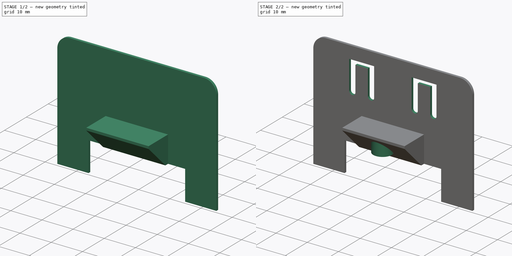
[diagram: build sequence overview — one tinted view per stage of 2, left to right]
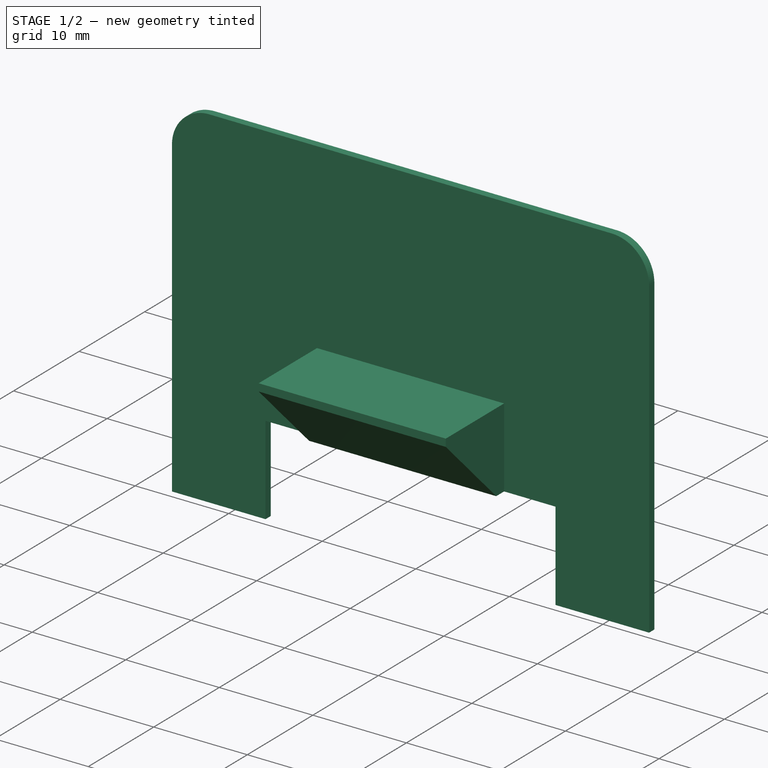
[diagram: stage 1 of 2 — iso view after this stage's code; geometry added in this stage tinted green]
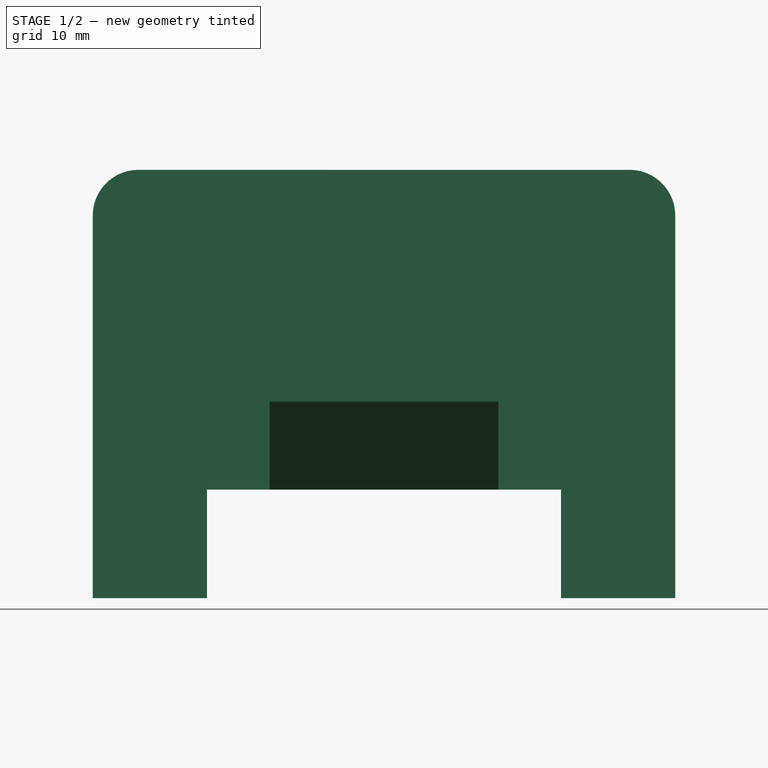
[diagram: stage 1 of 2 — front view after this stage's code; geometry added in this stage tinted green]
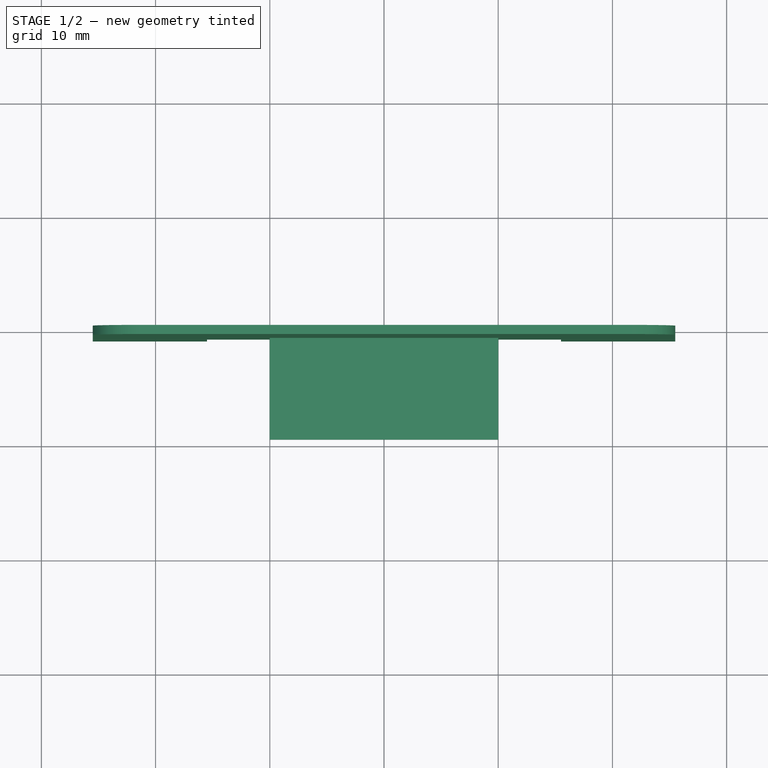
[diagram: stage 1 of 2 — top view after this stage's code; geometry added in this stage tinted green]
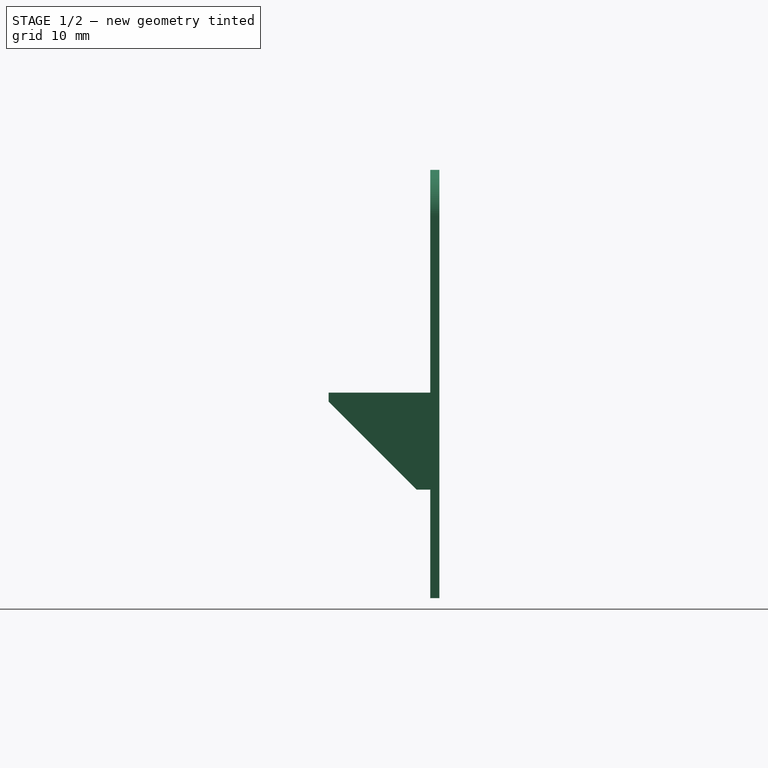
[diagram: stage 1 of 2 — right view after this stage's code; geometry added in this stage tinted green]
FCSTD DOCUMENT  (FreeCAD 0.19R24367 (Git))
Label: escornafaceBCClip
License: Creative Commons Attribution-ShareAlike
LicenseURL: http://creativecommons.org/licenses/by-sa/4.0/
objects: Sketcher::SketchObject×4, PartDesign::Pad×3, PartDesign::Pocket×1, PartDesign::Body×1, App::Part×1
note: 13 computed .brp shape members not serialized (recipe doc carries the construction recipe); baked Part::Feature solids carry a one-line shape summary decoded from their .brp

FEATURE [Sketcher::SketchObject] Sketch  label="Sketch-base"
  FullyConstrained = true
  MapMode = 5
  Placement = pos=(0,0,0) rot=(1,0,0;1.5708rad)
  Support = -> [XZ_Plane002]
  sketch-geometry (10):
    g0: LineSegment StartX=-25.5 StartY=14.5 StartZ=0 EndX=-25.5 EndY=48 EndZ=0
    g1: ArcOfCircle CenterX=-21.5 CenterY=48 CenterZ=0 NormalX=0 NormalY=0 NormalZ=1 AngleXU=0 Radius=4 StartAngle=1.5708 EndAngle=3.14159
    g2: LineSegment StartX=-21.5 StartY=52 StartZ=0 EndX=21.5 EndY=52 EndZ=0
    g3: ArcOfCircle CenterX=21.5 CenterY=48 CenterZ=0 NormalX=0 NormalY=0 NormalZ=1 AngleXU=0 Radius=4 StartAngle=1e-16 EndAngle=1.5708
    g4: LineSegment StartX=25.5 StartY=48 StartZ=0 EndX=25.5 EndY=14.5 EndZ=0
    g5: LineSegment StartX=25.5 StartY=14.5 StartZ=0 EndX=15.5 EndY=14.5 EndZ=0
    g6: LineSegment StartX=15.5 StartY=14.5 StartZ=0 EndX=15.5 EndY=24 EndZ=0
    g7: LineSegment StartX=15.5 StartY=24 StartZ=0 EndX=-15.5 EndY=24 EndZ=0
    g8: LineSegment StartX=-15.5 StartY=24 StartZ=0 EndX=-15.5 EndY=14.5 EndZ=0
    g9: LineSegment StartX=-15.5 StartY=14.5 StartZ=0 EndX=-25.5 EndY=14.5 EndZ=0
  constraints (27):
    c: Vertical(g0)
    c: Tangent(g0,g1) = 1.5708
    c: Tangent(g1,g2) = 1.5708
    c: Tangent(g2,g3) = 1.5708
    c: Tangent(g3,g4) = 1.5708
    c: Coincident(g4,g5)
    c: Horizontal(g5)
    c: Coincident(g5,g6)
    c: Vertical(g6)
    c: Coincident(g6,g7)
    c: Horizontal(g7)
    c: Coincident(g7,g8)
    c: Vertical(g8)
    c: Coincident(g8,g9)
    c: Coincident(g9,g0)
    c: Horizontal(g9)
    c: Equal(g9,g5)
    c: Vertical(g4)
    c: Horizontal(g2)
    c: Symmetric(g8,g5,g-2)
    c: Equal(g1,g3)
    c: DistanceX(g0,g3) = 51
    c: DistanceY(g4,g2) = 37.5
    c: DistanceX(g5,g5) = 10
    c: DistanceY(g6,g6) = 9.5
    c: DistanceY(g5) = 14.5
    c: Radius(g1) = 4
FEATURE [PartDesign::Pad] Pad  label="Pad-base"
  Direction = (1,1,1)
  Length = 0.8
  Length2 = 100
  Placement = pos=(0,0,0) rot=(1,0,0;1.5708rad)
  Profile = -> Sketch
  Type = 0
FEATURE [Sketcher::SketchObject] Sketch001  label="Sketch-support"
  FullyConstrained = true
  MapMode = 5
  Placement = pos=(0,0,0) rot=(0.57735,0.57735,0.57735;2.0944rad)
  Support = -> [YZ_Plane002]
  sketch-geometry (5):
    g0: LineSegment StartX=-2 StartY=24 StartZ=0 EndX=-9.7 EndY=31.7 EndZ=0
    g1: LineSegment StartX=-9.7 StartY=32.5 StartZ=0 EndX=0 EndY=32.5 EndZ=0
    g2: LineSegment StartX=0 StartY=32.5 StartZ=0 EndX=0 EndY=24 EndZ=0
    g3: LineSegment StartX=-2 StartY=24 StartZ=0 EndX=0 EndY=24 EndZ=0
    g4: LineSegment StartX=-9.7 StartY=31.7 StartZ=0 EndX=-9.7 EndY=32.5 EndZ=0
  constraints (15):
    c: Horizontal(g1)
    c: Coincident(g1,g2)
    c: Vertical(g2)
    c: Angle(g2,g0) = 0.785398
    c: Horizontal(g3)
    c: Coincident(g0,g3)
    c: Coincident(g2,g3)
    c: DistanceY(g2,g2) = 8.5
    c: PointOnObject(g2,g-2)
    c: Vertical(g4)
    c: Coincident(g1,g4)
    c: Coincident(g0,g4)
    c: DistanceX(g3,g3) = 2
    c: DistanceY(g4,g4) = 0.8
    c: DistanceY(g2) = 24
FEATURE [PartDesign::Pad] Pad001  label="Pad-support"
  BaseFeature = -> Pad
  Direction = (1,1,1)
  Length = 20
  Length2 = 100
  Midplane = true
  Placement = pos=(0,0,0) rot=(1,0,0;1.5708rad)
  Profile = -> Sketch001
  Refine = true
  Type = 0
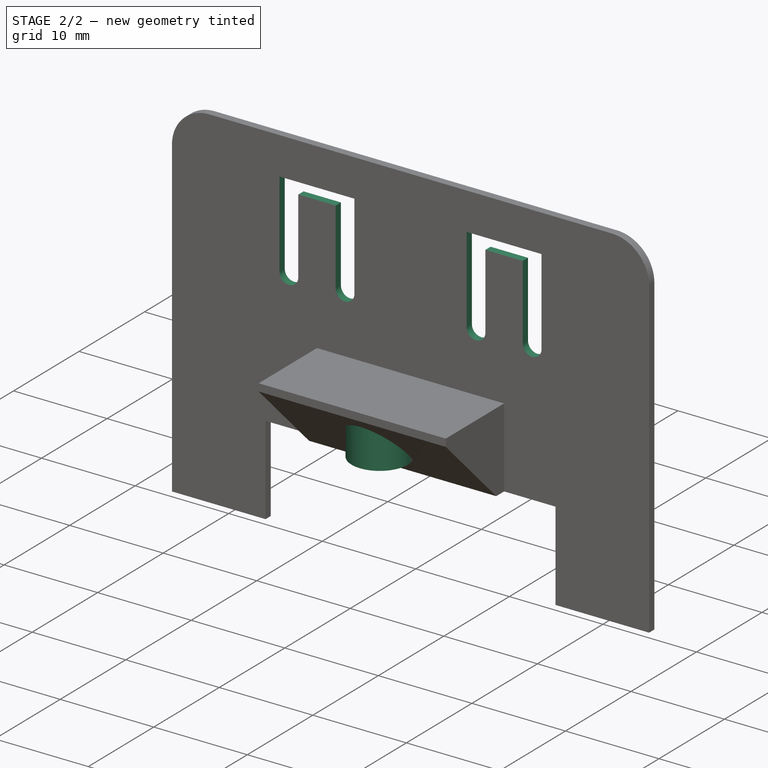
[diagram: stage 2 of 2 — iso view after this stage's code; geometry added in this stage tinted green]
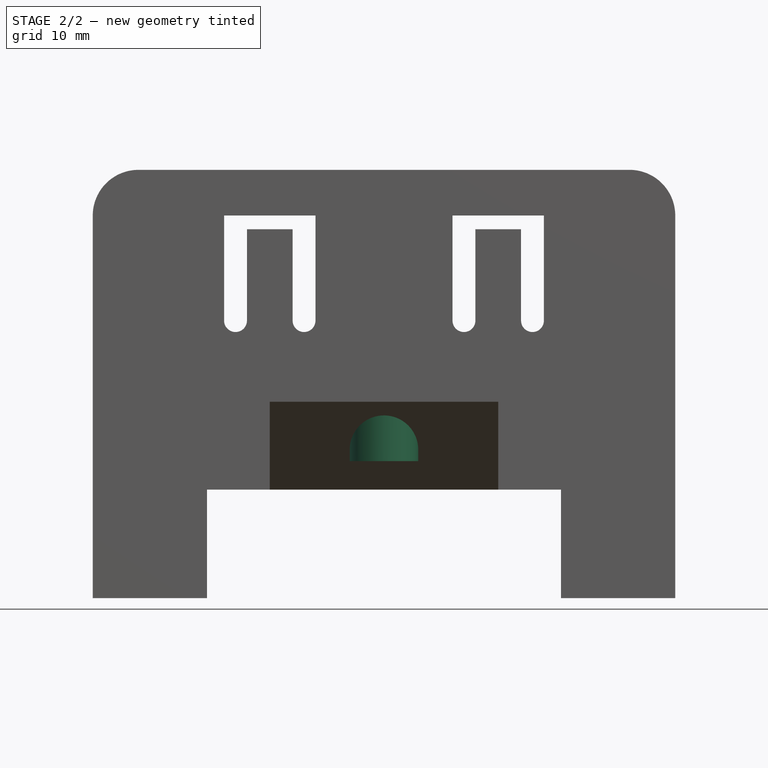
[diagram: stage 2 of 2 — front view after this stage's code; geometry added in this stage tinted green]
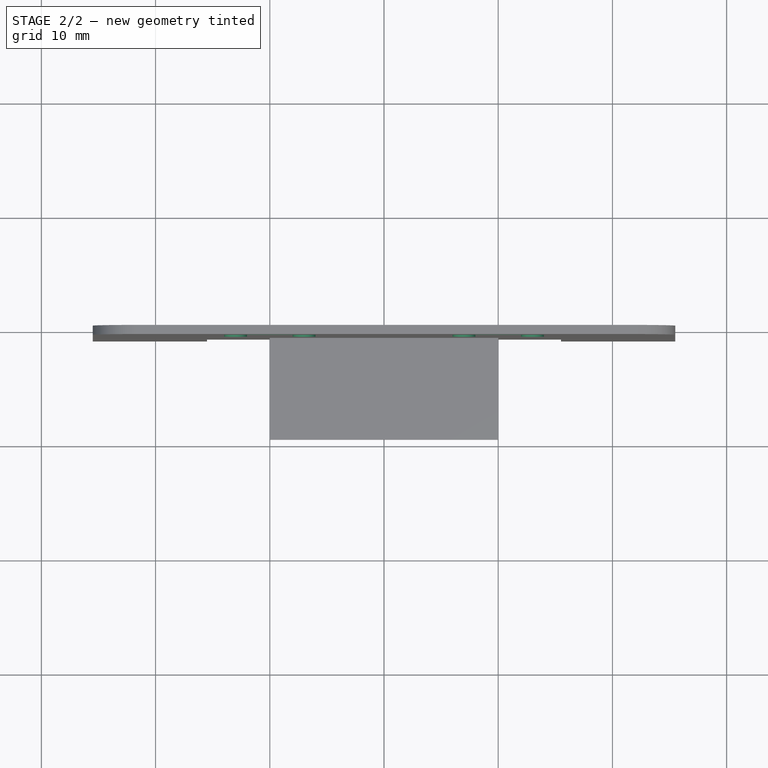
[diagram: stage 2 of 2 — top view after this stage's code; geometry added in this stage tinted green]
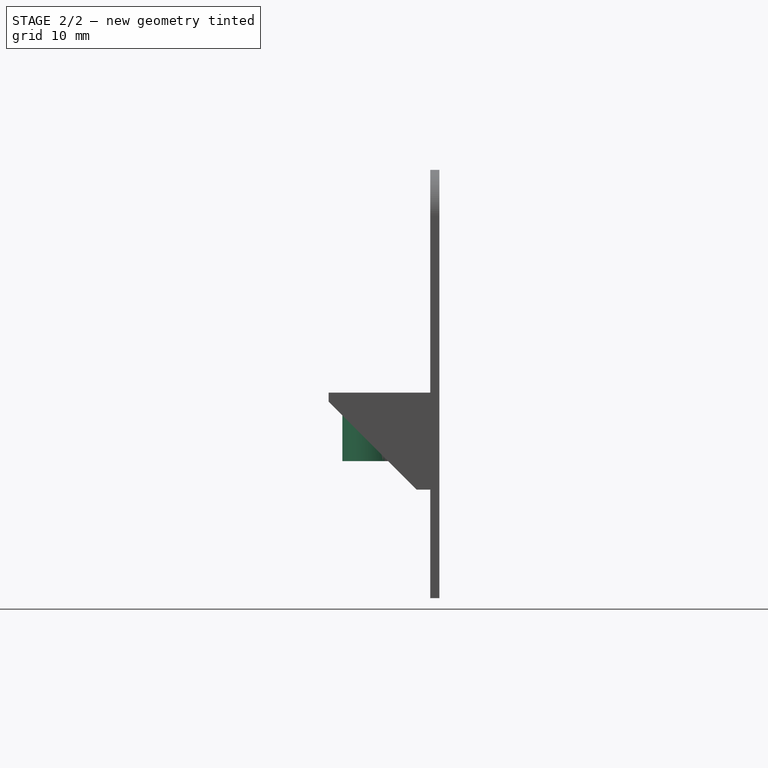
[diagram: stage 2 of 2 — right view after this stage's code; geometry added in this stage tinted green]
FEATURE [Sketcher::SketchObject] Sketch003  label="Sketch-hook"
  FullyConstrained = true
  MapMode = 5
  Placement = pos=(-9.1e-15,1.43e-14,32.5) rot=(0,0,1;3.14159rad)
  Support = -> [Pad001]
  sketch-geometry (1):
    g0: Circle CenterX=0 CenterY=5.5 CenterZ=0 NormalX=0 NormalY=0 NormalZ=1 AngleXU=0 Radius=3
  constraints (3):
    c: Radius(g0) = 3
    c: DistanceY(g0) = 5.5
    c: PointOnObject(g0,g-2)
FEATURE [PartDesign::Pad] Pad002  label="Pad-hook"
  BaseFeature = -> Pad001
  Direction = (1,1,1)
  Length = 6
  Length2 = 100
  Placement = pos=(0,0,0) rot=(1,0,0;1.5708rad)
  Profile = -> Sketch003
  Refine = true
  Reversed = true
  Type = 0
FEATURE [Sketcher::SketchObject] Sketch004  label="Sketch-clips"
  FullyConstrained = true
  MapMode = 5
  Placement = pos=(0,-0.8,-2e-16) rot=(1,0,0;1.5708rad)
  Support = -> [Pad002]
  sketch-geometry (16):
    g0: LineSegment StartX=-12 StartY=38.8 StartZ=0 EndX=-12 EndY=46.8 EndZ=0
    g1: LineSegment StartX=-12 StartY=46.8 StartZ=0 EndX=-8 EndY=46.8 EndZ=0
    g2: LineSegment StartX=-8 StartY=46.8 StartZ=0 EndX=-8 EndY=38.8 EndZ=0
    g3: ArcOfCircle CenterX=-7 CenterY=38.8 CenterZ=0 NormalX=0 NormalY=0 NormalZ=1 AngleXU=0 Radius=1 StartAngle=3.14159 EndAngle=6.28319
    g4: LineSegment StartX=-6 StartY=38.8 StartZ=0 EndX=-6 EndY=48 EndZ=0
    g5: LineSegment StartX=-6 StartY=48 StartZ=0 EndX=-14 EndY=48 EndZ=0
    g6: LineSegment StartX=-14 StartY=48 StartZ=0 EndX=-14 EndY=38.8 EndZ=0
    g7: ArcOfCircle CenterX=-13 CenterY=38.8 CenterZ=0 NormalX=0 NormalY=0 NormalZ=1 AngleXU=0 Radius=1 StartAngle=3.14159 EndAngle=6.28319
    g8: LineSegment StartX=12 StartY=38.8 StartZ=0 EndX=12 EndY=46.8 EndZ=0
    g9: LineSegment StartX=12 StartY=46.8 StartZ=0 EndX=8 EndY=46.8 EndZ=0
    g10: LineSegment StartX=8 StartY=46.8 StartZ=0 EndX=8 EndY=38.8 EndZ=0
    g11: ArcOfCircle CenterX=7 CenterY=38.8 CenterZ=0 NormalX=0 NormalY=0 NormalZ=1 AngleXU=0 Radius=1 StartAngle=3.14159 EndAngle=6.28319
    g12: LineSegment StartX=6 StartY=38.8 StartZ=0 EndX=6 EndY=48 EndZ=0
    g13: LineSegment StartX=6 StartY=48 StartZ=0 EndX=14 EndY=48 EndZ=0
    g14: LineSegment StartX=14 StartY=48 StartZ=0 EndX=14 EndY=38.8 EndZ=0
    g15: ArcOfCircle CenterX=13 CenterY=38.8 CenterZ=0 NormalX=0 NormalY=0 NormalZ=1 AngleXU=0 Radius=1 StartAngle=3.14159 EndAngle=6.28319
  constraints (44):
    c: Vertical(g0)
    c: Coincident(g0,g1)
    c: Horizontal(g1)
    c: Coincident(g1,g2)
    c: Vertical(g2)
    c: Tangent(g2,g3) = -1.5708
    c: Tangent(g3,g4) = -1.5708
    c: Coincident(g4,g5)
    c: Horizontal(g5)
    c: Coincident(g5,g6)
    c: Vertical(g6)
    c: Tangent(g6,g7) = -1.5708
    c: Vertical(g4)
    c: Tangent(g7,g0) = -1.5708
    c: Equal(g7,g3)
    c: DistanceX(g1,g1) = 4
    c: DistanceY(g0,g0) = 8
    c: Radius(g7) = 1
    c: DistanceY(g1,g4) = 1.2
    c: Horizontal(g3,g7)
    c: DistanceX(g4) = -6
    c: DistanceY(g5) = 48
    c: Vertical(g8)
    c: Coincident(g8,g9)
    c: Horizontal(g9)
    c: Coincident(g9,g10)
    c: Vertical(g10)
    c: Tangent(g10,g11) = 1.5708
    c: Tangent(g11,g12) = 1.5708
    c: Coincident(g12,g13)
    c: Horizontal(g13)
    c: Coincident(g13,g14)
    c: Vertical(g14)
    c: Tangent(g14,g15) = 1.5708
    c: Vertical(g12)
    c: Tangent(g15,g8) = 1.5708
    c: Equal(g15,g11)
    c: Radius(g15) = 1
    c: Equal(g10,g0)
    c: Equal(g1,g9)
    c: DistanceX(g12) = 6
    c: DistanceY(g9,g12) = 1.2
    c: Horizontal(g11,g15)
    c: Horizontal(g4,g12)
FEATURE [PartDesign::Pocket] Pocket  label="Pocket-clips"
  BaseFeature = -> Pad002
  Length = 5
  Length2 = 100
  Placement = pos=(0,0,0) rot=(1,0,0;1.5708rad)
  Profile = -> Sketch004
  Type = 0
FEATURE [PartDesign::Body] Body  label="Body-escornaface"
  Group = -> [Sketch,Pad,Sketch001,Pad001,Sketch003,Pad002,Sketch004,Pocket]
  Origin = -> Origin002
  Tip = -> Pocket
FEATURE [App::Part] Part  label="Part-escornaface"
  Group = -> [Body]
  Origin = -> Origin001
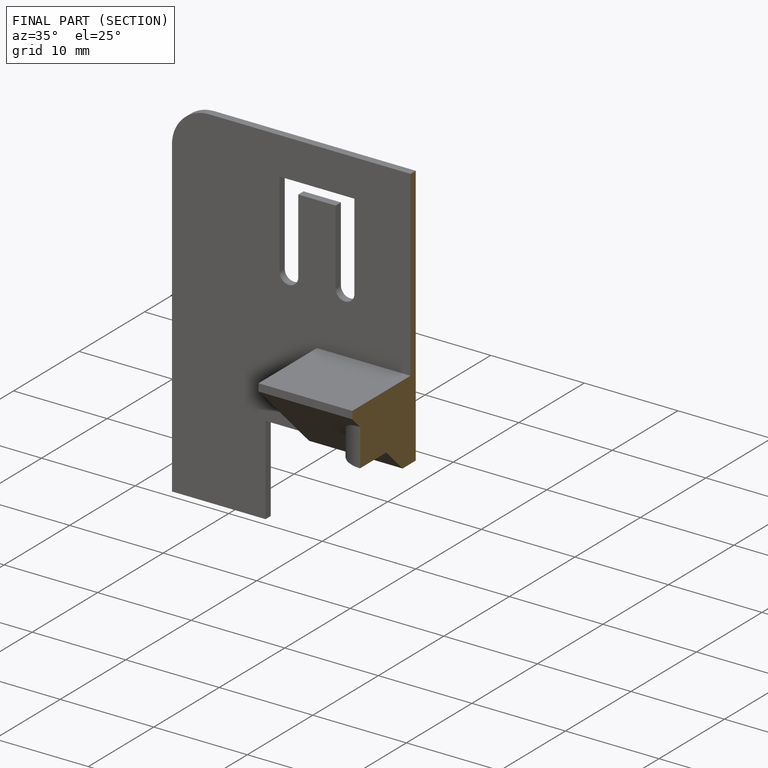
[diagram: finished part — half-section view (interior)]
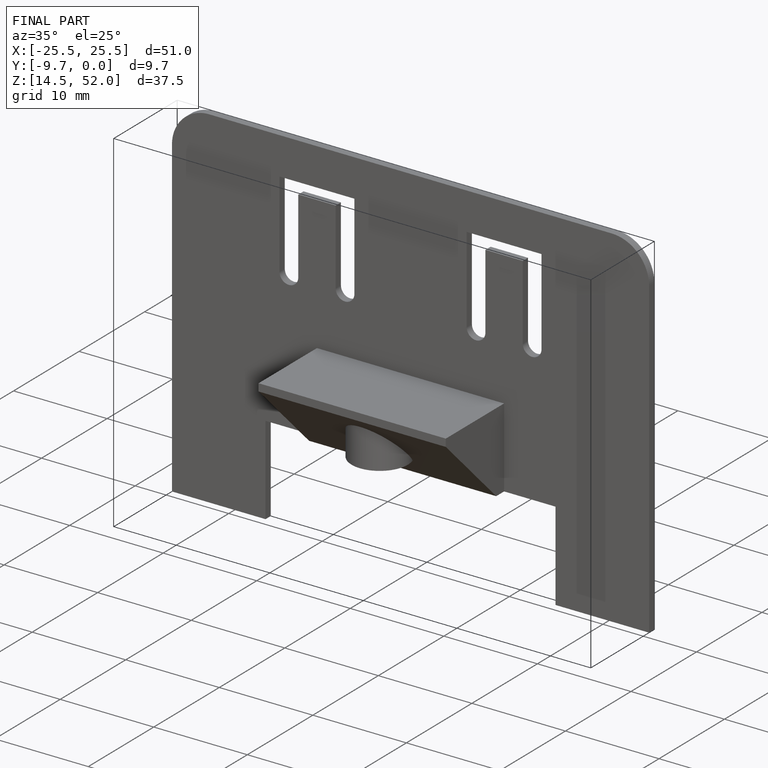
[diagram: finished part — iso view with bounding-box wireframe]
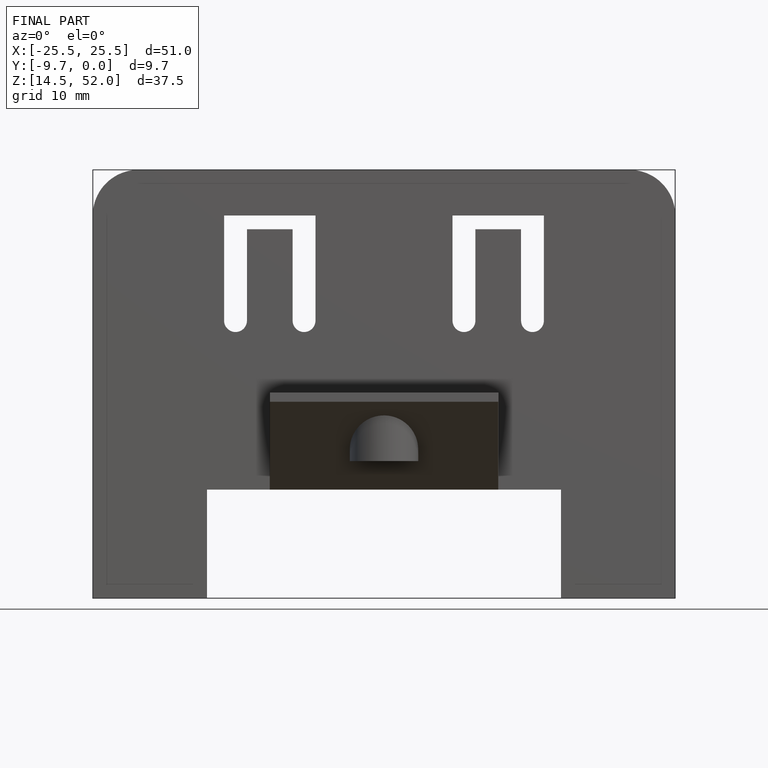
[diagram: finished part — front view with bounding-box wireframe]
